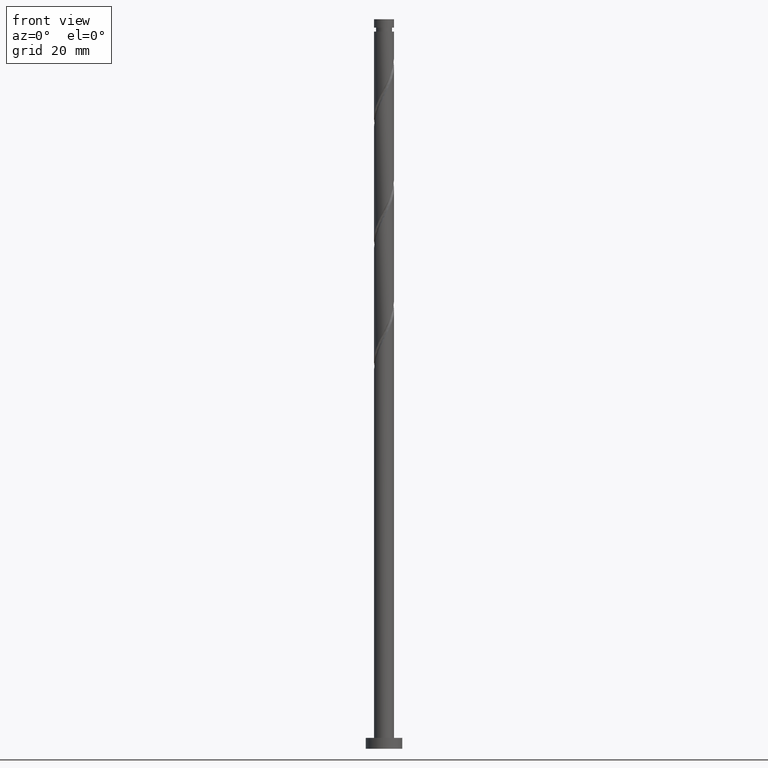
[diagram: clean part render]
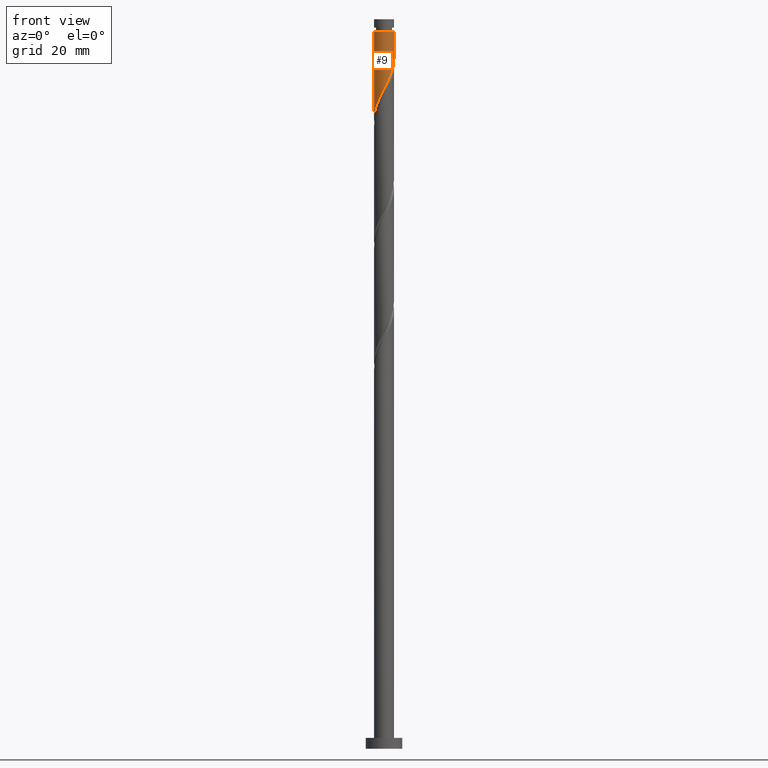
[diagram: same view with one face highlighted and labeled with its STEP entity id]
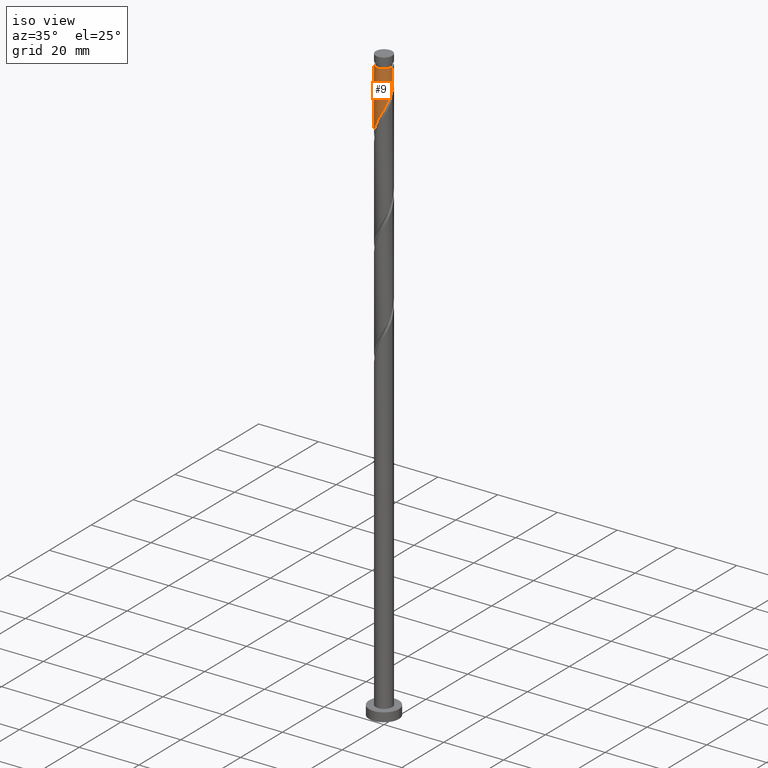
[diagram: same view with one face highlighted and labeled with its STEP entity id]
A machine part, front view. The second image highlights one B-rep face of the part: STEP entity #9.
A second angle (iso view) of the same face is appended — the face is thin or edge-on in the first view.
In plain terms, the highlighted cylindrical surface (edge-blend (fillet) strip) has radius 2.75 mm, axis along (-0, -0, -1).
Its self-contained STEP definition (entity closure, byte-faithful):
#9 = ADVANCED_FACE ( 'NONE', ( #1029 ), #190, .T. ) ;
#12 = VERTEX_POINT ( 'NONE', #1379 ) ;
#57 = CARTESIAN_POINT ( 'NONE',  ( -2.292612075483178469, -1.518693475112311342, 175.7710791892548059 ) ) ;
#67 = CARTESIAN_POINT ( 'NONE',  ( 2.622954080360256235, -0.9020465714066764340, 187.5766347448104057 ) ) ;
#71 = CIRCLE ( 'NONE', #289, 2.749999999999987566 ) ;
#110 = VERTEX_POINT ( 'NONE', #1546 ) ;
#146 = DIRECTION ( 'NONE',  ( -0.000000000000000000, -0.000000000000000000, -1.000000000000000000 ) ) ;
#190 = CYLINDRICAL_SURFACE ( 'NONE', #322, 2.750000000000000000 ) ;
#216 = CARTESIAN_POINT ( 'NONE',  ( -1.550180550263815737, -2.300112255140786655, 177.8544125225881771 ) ) ;
#237 = EDGE_CURVE ( 'NONE', #1446, #12, #71, .T. ) ;
#275 = LINE ( 'NONE', #558, #1301 ) ;
#288 = LINE ( 'NONE', #678, #787 ) ;
#289 = AXIS2_PLACEMENT_3D ( 'NONE', #1019, #870, #1393 ) ;
#322 = AXIS2_PLACEMENT_3D ( 'NONE', #1145, #340, #579 ) ;
#340 = DIRECTION ( 'NONE',  ( -0.000000000000000000, -0.000000000000000000, -1.000000000000000000 ) ) ;
#357 = CARTESIAN_POINT ( 'NONE',  ( -2.750000000000000000, 2.901034182062286883E-15, 172.6679791777982587 ) ) ;
#364 = CARTESIAN_POINT ( 'NONE',  ( 0.1689210922673410054, -2.744807035947555818, 181.3266347448103488 ) ) ;
#481 = CARTESIAN_POINT ( 'NONE',  ( -0.9020465714066752128, -2.622954080360256679, 179.2433014114770913 ) ) ;
#491 = CARTESIAN_POINT ( 'NONE',  ( -2.092672286414962723, -1.820521580848695198, 176.4655236336992346 ) ) ;
#531 = CARTESIAN_POINT ( 'NONE',  ( -2.750000000000000000, 2.901034182062286883E-15, 172.6679791777982587 ) ) ;
#558 = CARTESIAN_POINT ( 'NONE',  ( 2.750000000000000000, 3.367778697655221012E-16, 200.0000000000000000 ) ) ;
#579 = DIRECTION ( 'NONE',  ( -1.000000000000000000, 0.000000000000000000, 0.000000000000000000 ) ) ;
#598 = CARTESIAN_POINT ( 'NONE',  ( -2.744807035947555818, -0.1689210922673418935, 172.9933014114770344 ) ) ;
#617 = CARTESIAN_POINT ( 'NONE',  ( 2.750000000000000888, -0.2763853991962822443, 188.8012194752756159 ) ) ;
#627 = CARTESIAN_POINT ( 'NONE',  ( 0.8735735816606100546, -2.607560008403383645, 182.7155236336992630 ) ) ;
#644 = ORIENTED_EDGE ( 'NONE', *, *, #1021, .F. ) ;
#678 = CARTESIAN_POINT ( 'NONE',  ( -2.750000000000000000, 0.000000000000000000, 200.0000000000000000 ) ) ;
#689 = EDGE_CURVE ( 'NONE', #12, #1292, #288, .T. ) ;
#733 = CARTESIAN_POINT ( 'NONE',  ( 2.300112255140786210, -1.550180550263816182, 186.1877458559215484 ) ) ;
#754 = CARTESIAN_POINT ( 'NONE',  ( 1.820521580848694754, -2.092672286414962723, 184.7988569670326058 ) ) ;
#770 = CARTESIAN_POINT ( 'NONE',  ( 0.5302817939452934004, -2.722568152255370855, 182.0210791892548343 ) ) ;
#787 = VECTOR ( 'NONE', #146, 1000.000000000000000 ) ;
#844 = ORIENTED_EDGE ( 'NONE', *, *, #1343, .F. ) ;
#869 = CARTESIAN_POINT ( 'NONE',  ( 2.060316917994739594, -1.821426418339389119, 185.4933014114770629 ) ) ;
#870 = DIRECTION ( 'NONE',  ( -0.000000000000000000, -0.000000000000000000, -1.000000000000000000 ) ) ;
#889 = CARTESIAN_POINT ( 'NONE',  ( -0.1924396094106114175, -2.767045919639743445, 180.6321903003658917 ) ) ;
#1019 = CARTESIAN_POINT ( 'NONE',  ( 0.000000000000000000, 0.000000000000000000, 196.6044125225881487 ) ) ;
#1021 = EDGE_CURVE ( 'NONE', #110, #1292, #1555, .T. ) ;
#1029 = FACE_OUTER_BOUND ( 'NONE', #1729, .T. ) ;
#1037 = CARTESIAN_POINT ( 'NONE',  ( -1.226113560835244920, -2.461533167750520779, 178.5488569670326058 ) ) ;
#1079 = ORIENTED_EDGE ( 'NONE', *, *, #689, .T. ) ;
#1145 = CARTESIAN_POINT ( 'NONE',  ( 0.000000000000000000, 0.000000000000000000, 200.0000000000000000 ) ) ;
#1163 = CARTESIAN_POINT ( 'NONE',  ( -2.722568152255370855, -0.5302817939452945106, 173.6877458559214915 ) ) ;
#1170 = CARTESIAN_POINT ( 'NONE',  ( 2.694999999999998952, -0.5472430904086427184, 188.2710791892547775 ) ) ;
#1178 = CARTESIAN_POINT ( 'NONE',  ( -0.5472430904086426073, -2.694999999999998952, 179.9377458559214347 ) ) ;
#1214 = DIRECTION ( 'NONE',  ( -0.000000000000000000, -0.000000000000000000, -1.000000000000000000 ) ) ;
#1216 = ORIENTED_EDGE ( 'NONE', *, *, #237, .T. ) ;
#1272 = CARTESIAN_POINT ( 'NONE',  ( -2.750000000000000000, -0.08454036705860346057, 172.8311428658264219 ) ) ;
#1292 = VERTEX_POINT ( 'NONE', #531 ) ;
#1301 = VECTOR ( 'NONE', #1214, 1000.000000000000000 ) ;
#1343 = EDGE_CURVE ( 'NONE', #1446, #110, #275, .T. ) ;
#1372 = CARTESIAN_POINT ( 'NONE',  ( 2.749999999999987566, 3.367778697655213616E-16, 196.6044125225881487 ) ) ;
#1379 = CARTESIAN_POINT ( 'NONE',  ( -2.749999999999987566, 0.000000000000000000, 196.6044125225881487 ) ) ;
#1393 = DIRECTION ( 'NONE',  ( -1.000000000000000000, 0.000000000000000000, 0.000000000000000000 ) ) ;
#1444 = CARTESIAN_POINT ( 'NONE',  ( 1.518693475112310010, -2.292612075483179357, 184.1044125225880919 ) ) ;
#1446 = VERTEX_POINT ( 'NONE', #1372 ) ;
#1544 = CARTESIAN_POINT ( 'NONE',  ( 2.750000000000000444, 2.317836588761105815E-16, 189.3346458444649159 ) ) ;
#1546 = CARTESIAN_POINT ( 'NONE',  ( 2.750000000000000444, 2.317836588761105815E-16, 189.3346458444649159 ) ) ;
#1555 =( BOUNDED_CURVE ( )  B_SPLINE_CURVE ( 2, ( #1544, #617, #1170, #67, #1582, #733, #869, #754, #1444, #1699, #627, #770, #364, #889, #1178, #481, #1037, #216, #1707, #491, #57, #1565, #1573, #1163, #598, #1272, #357 ),
 .UNSPECIFIED., .F., .T. ) 
 B_SPLINE_CURVE_WITH_KNOTS ( ( 3, 2, 2, 2, 2, 2, 2, 2, 2, 2, 2, 2, 2, 3 ),
 ( 0.3045317669814461836, 0.3125000000000000000, 0.3229166666666666852, 0.3333333333333333148, 0.3437500000000000000, 0.3541666666666666852, 0.3645833333333333148, 0.3750000000000000000, 0.3854166666666666852, 0.3958333333333333148, 0.4062500000000000000, 0.4166666666666666852, 0.4270833333333333148, 0.4295317669814461836 ),
 .UNSPECIFIED. ) 
 CURVE ( )  GEOMETRIC_REPRESENTATION_ITEM ( )  RATIONAL_B_SPLINE_CURVE ( ( 0.9062941362546476087, 0.9031415850403516909, 0.9090909090909271573, 0.9013135103398454140, 0.9090909090909271573, 0.9013135103398454140, 0.9090909090909271573, 0.9013135103398454140, 0.9090909090909271573, 0.9013135103398454140, 0.9090909090909271573, 0.9013135103398454140, 0.9090909090909271573, 0.9013135103398454140, 0.9090909090909271573, 0.9013135103398454140, 0.9090909090909271573, 0.9013135103398454140, 0.9090909090909271573, 0.9013135103398454140, 0.9090909090909271573, 0.9013135103398454140, 0.9090909090909271573, 0.9013135103398454140, 0.9090909090909271573, 0.9072628343904209913, 0.9062941362546476087 ) ) 
 REPRESENTATION_ITEM ( '' )  );
#1565 = CARTESIAN_POINT ( 'NONE',  ( -2.492551864551397323, -1.216865369375926598, 175.0766347448103772 ) ) ;
#1573 = CARTESIAN_POINT ( 'NONE',  ( -2.607560008403383645, -0.8735735816606104986, 174.3821903003658633 ) ) ;
#1582 = CARTESIAN_POINT ( 'NONE',  ( 2.461533167750520334, -1.226113560835246030, 186.8821903003658065 ) ) ;
#1699 = CARTESIAN_POINT ( 'NONE',  ( 1.216865369375926598, -2.492551864551397323, 183.4099680781437485 ) ) ;
#1707 = CARTESIAN_POINT ( 'NONE',  ( -1.821426418339388675, -2.060316917994740038, 177.1599680781436916 ) ) ;
#1729 = EDGE_LOOP ( 'NONE', ( #844, #1216, #1079, #644 ) ) ;